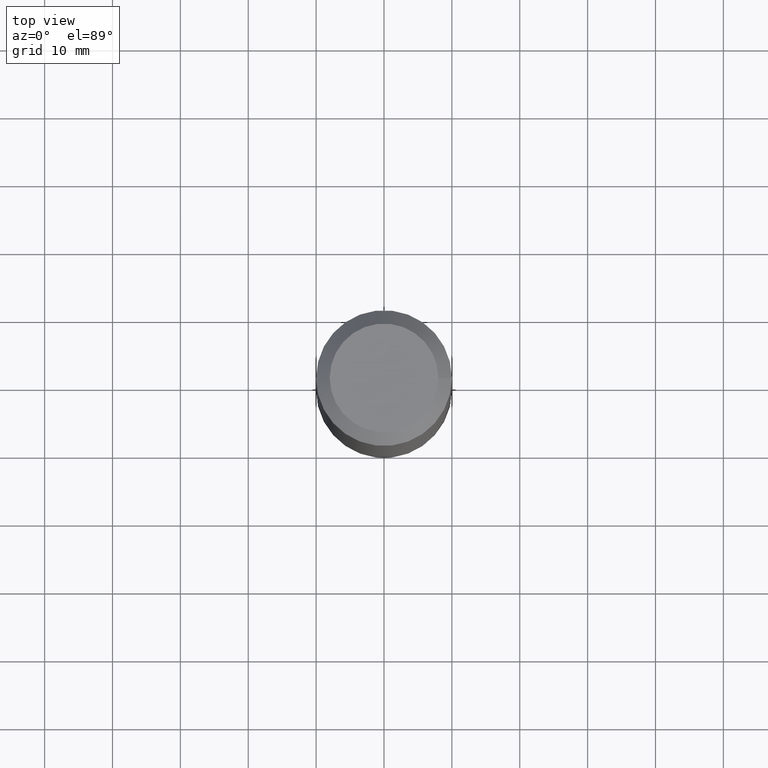
[diagram: clean part render]
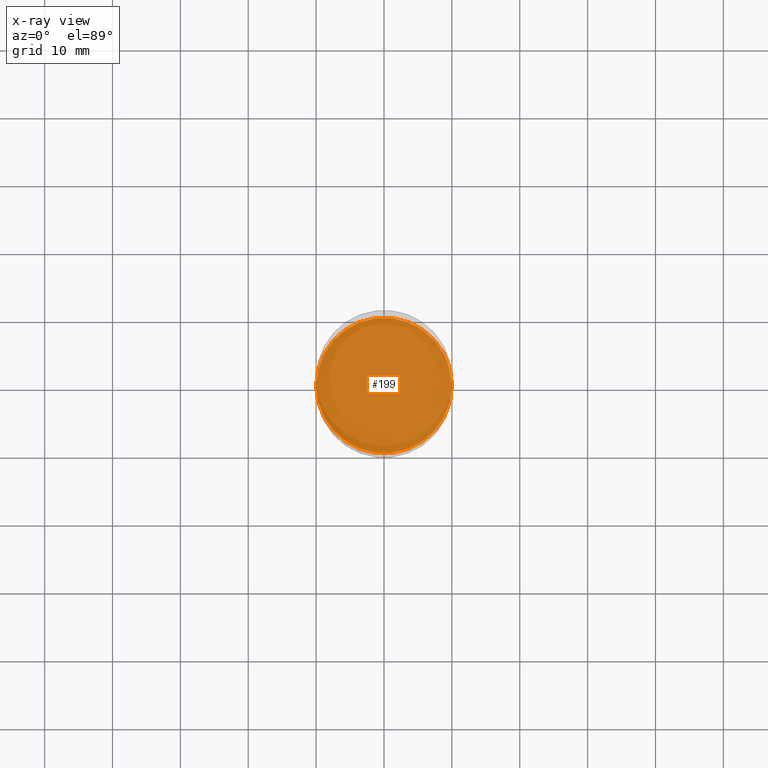
[diagram: x-ray — body ghosted, one internal face saturated and labeled with its STEP entity id]
A machine part, top view, then the same camera in x-ray: the body is ghosted and one INTERNAL B-rep face — a face not visible from any outside direction — is saturated and labeled: STEP entity #199.
In plain terms, the highlighted planar face has unit normal (-0, 0, -1).
Its self-contained STEP definition (entity closure, byte-faithful):
#8 = CARTESIAN_POINT ( 'NONE',  ( 9.999999999999538147, 0.0000000000000000000, -66.00000000000007105 ) ) ;
#17 = DIRECTION ( 'NONE',  ( 1.000000000000000000, 0.0000000000000000000, -6.938893903907228378E-15 ) ) ;
#43 = AXIS2_PLACEMENT_3D ( 'NONE', #108, #109, #196 ) ;
#59 = PLANE ( 'NONE',  #43 ) ;
#97 = ORIENTED_EDGE ( 'NONE', *, *, #137, .F. ) ;
#104 = CARTESIAN_POINT ( 'NONE',  ( -4.608755367272936534E-13, 0.0000000000000000000, -66.00000000000000000 ) ) ;
#106 = DIRECTION ( 'NONE',  ( -6.982962677686267499E-15, -0.0000000000000000000, -1.000000000000000000 ) ) ;
#108 = CARTESIAN_POINT ( 'NONE',  ( -4.608755367272936534E-13, 0.0000000000000000000, -66.00000000000000000 ) ) ;
#109 = DIRECTION ( 'NONE',  ( -6.982962677686266711E-15, 0.0000000000000000000, -1.000000000000000000 ) ) ;
#126 = CIRCLE ( 'NONE', #195, 10.00000000000000000 ) ;
#137 = EDGE_CURVE ( 'NONE', #180, #180, #126, .T. ) ;
#168 = EDGE_LOOP ( 'NONE', ( #97 ) ) ;
#180 = VERTEX_POINT ( 'NONE', #8 ) ;
#195 = AXIS2_PLACEMENT_3D ( 'NONE', #104, #106, #17 ) ;
#196 = DIRECTION ( 'NONE',  ( -1.000000000000000000, 0.0000000000000000000, 6.982962677686266711E-15 ) ) ;
#199 = ADVANCED_FACE ( 'NONE', ( #200 ), #59, .F. ) ;
#200 = FACE_OUTER_BOUND ( 'NONE', #168, .T. ) ;